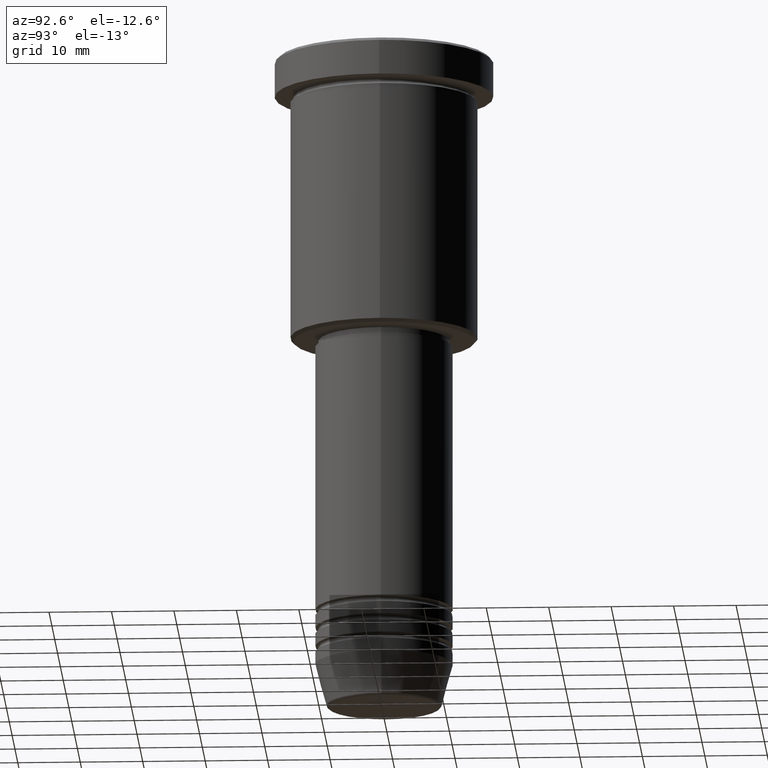
[diagram: clean part render]
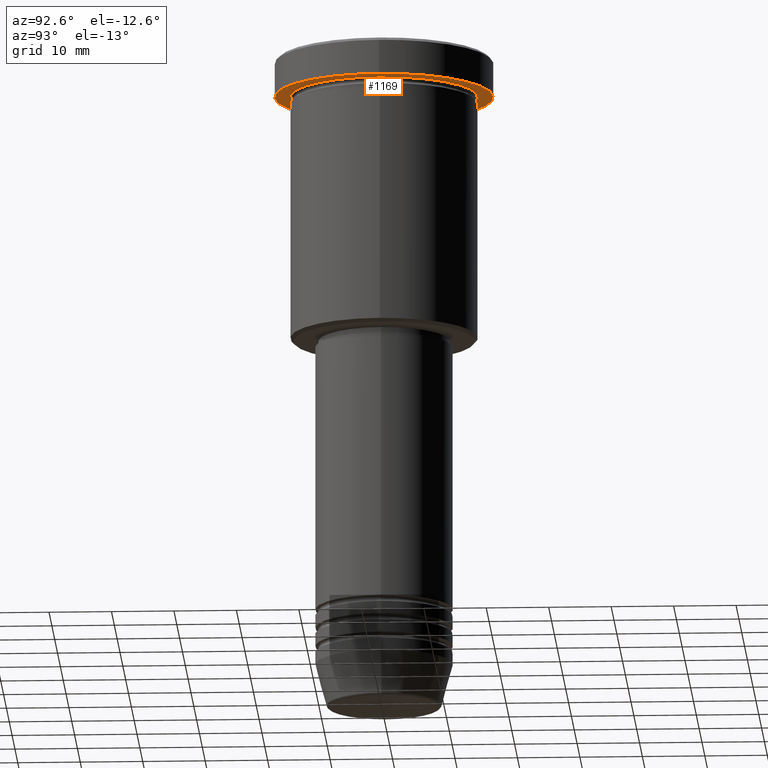
[diagram: same view with one face highlighted and labeled with its STEP entity id]
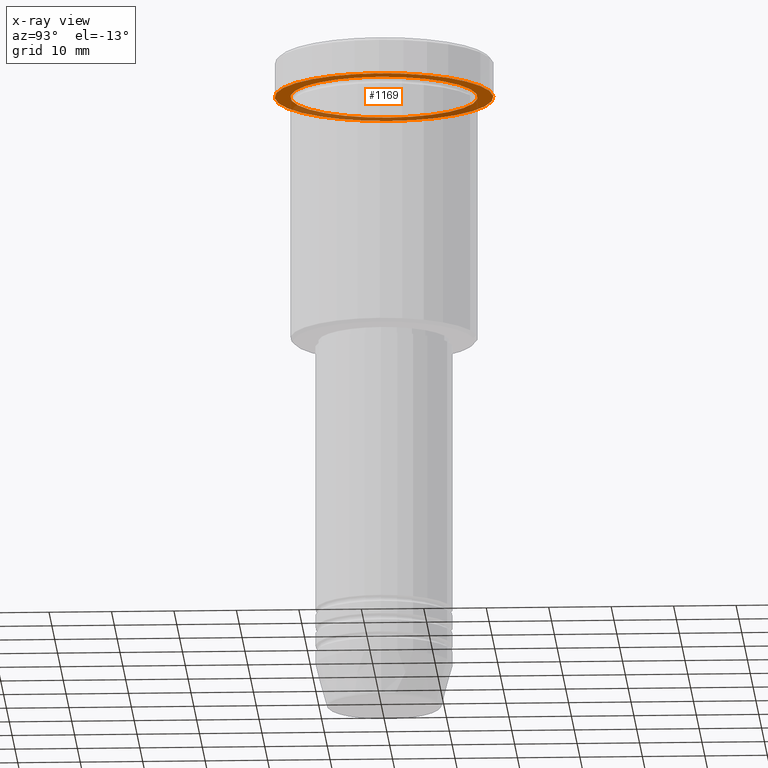
[diagram: x-ray of the same camera — body ghosted, the highlighted face saturated]
A machine part, auxiliary view. The second image highlights one B-rep face of the part: STEP entity #1169.
The next image is the same camera in x-ray: the body ghosted, the highlighted face saturated — about 35% of this face is hidden behind the body in this view.
In plain terms, the highlighted planar face has unit normal (0, 0, -1).
Its self-contained STEP definition (entity closure, byte-faithful):
#12 = VERTEX_POINT ( 'NONE', #913 ) ;
#40 = CARTESIAN_POINT ( 'NONE',  ( -15.00000000000000000, 0.000000000000000000, -5.999999999999994671 ) ) ;
#57 = CARTESIAN_POINT ( 'NONE',  ( 17.50000000000000000, 0.000000000000000000, -5.999999999999995559 ) ) ;
#97 = CARTESIAN_POINT ( 'NONE',  ( -17.50000000000000000, 2.143131898507868248E-15, -5.999999999999995559 ) ) ;
#154 = DIRECTION ( 'NONE',  ( 1.000000000000000000, 0.000000000000000000, 0.000000000000000000 ) ) ;
#177 = DIRECTION ( 'NONE',  ( -0.000000000000000000, -0.000000000000000000, 1.000000000000000000 ) ) ;
#225 = CIRCLE ( 'NONE', #1105, 17.50000000000000000 ) ;
#260 = FACE_BOUND ( 'NONE', #497, .T. ) ;
#265 = CARTESIAN_POINT ( 'NONE',  ( 0.000000000000000000, 0.000000000000000000, -5.999999999999995559 ) ) ;
#288 = CIRCLE ( 'NONE', #1000, 15.00000000000000000 ) ;
#322 = DIRECTION ( 'NONE',  ( -0.000000000000000000, -0.000000000000000000, 1.000000000000000000 ) ) ;
#340 = EDGE_CURVE ( 'NONE', #1084, #12, #1040, .T. ) ;
#348 = DIRECTION ( 'NONE',  ( -1.000000000000000000, 0.000000000000000000, 0.000000000000000000 ) ) ;
#349 = AXIS2_PLACEMENT_3D ( 'NONE', #265, #177, #348 ) ;
#361 = EDGE_CURVE ( 'NONE', #12, #1084, #288, .T. ) ;
#423 = CARTESIAN_POINT ( 'NONE',  ( 0.000000000000000000, 0.000000000000000000, -5.999999999999995559 ) ) ;
#453 = DIRECTION ( 'NONE',  ( -0.000000000000000000, -0.000000000000000000, 1.000000000000000000 ) ) ;
#471 = VERTEX_POINT ( 'NONE', #97 ) ;
#474 = EDGE_LOOP ( 'NONE', ( #488, #628 ) ) ;
#488 = ORIENTED_EDGE ( 'NONE', *, *, #670, .F. ) ;
#497 = EDGE_LOOP ( 'NONE', ( #961, #1096 ) ) ;
#628 = ORIENTED_EDGE ( 'NONE', *, *, #914, .F. ) ;
#639 = DIRECTION ( 'NONE',  ( -1.000000000000000000, 0.000000000000000000, 0.000000000000000000 ) ) ;
#670 = EDGE_CURVE ( 'NONE', #991, #471, #841, .T. ) ;
#712 = CARTESIAN_POINT ( 'NONE',  ( 0.000000000000000000, 0.000000000000000000, -5.999999999999995559 ) ) ;
#717 = CARTESIAN_POINT ( 'NONE',  ( 0.000000000000000000, 17.50000000000000000, -5.999999999999995559 ) ) ;
#804 = CARTESIAN_POINT ( 'NONE',  ( 0.000000000000000000, 0.000000000000000000, -5.999999999999995559 ) ) ;
#806 = DIRECTION ( 'NONE',  ( -0.000000000000000000, -0.000000000000000000, 1.000000000000000000 ) ) ;
#841 = CIRCLE ( 'NONE', #1174, 17.50000000000000000 ) ;
#888 = FACE_OUTER_BOUND ( 'NONE', #474, .T. ) ;
#905 = PLANE ( 'NONE',  #1127 ) ;
#913 = CARTESIAN_POINT ( 'NONE',  ( 15.00000000000000000, 1.836970198721029589E-15, -5.999999999999994671 ) ) ;
#914 = EDGE_CURVE ( 'NONE', #471, #991, #225, .T. ) ;
#961 = ORIENTED_EDGE ( 'NONE', *, *, #340, .T. ) ;
#991 = VERTEX_POINT ( 'NONE', #57 ) ;
#1000 = AXIS2_PLACEMENT_3D ( 'NONE', #712, #806, #639 ) ;
#1040 = CIRCLE ( 'NONE', #349, 15.00000000000000000 ) ;
#1075 = DIRECTION ( 'NONE',  ( 0.000000000000000000, 0.000000000000000000, -1.000000000000000000 ) ) ;
#1083 = DIRECTION ( 'NONE',  ( -1.000000000000000000, 0.000000000000000000, -0.000000000000000000 ) ) ;
#1084 = VERTEX_POINT ( 'NONE', #40 ) ;
#1096 = ORIENTED_EDGE ( 'NONE', *, *, #361, .T. ) ;
#1105 = AXIS2_PLACEMENT_3D ( 'NONE', #804, #453, #154 ) ;
#1127 = AXIS2_PLACEMENT_3D ( 'NONE', #717, #1075, #1083 ) ;
#1143 = DIRECTION ( 'NONE',  ( 1.000000000000000000, 0.000000000000000000, 0.000000000000000000 ) ) ;
#1169 = ADVANCED_FACE ( 'NONE', ( #260, #888 ), #905, .T. ) ;
#1174 = AXIS2_PLACEMENT_3D ( 'NONE', #423, #322, #1143 ) ;